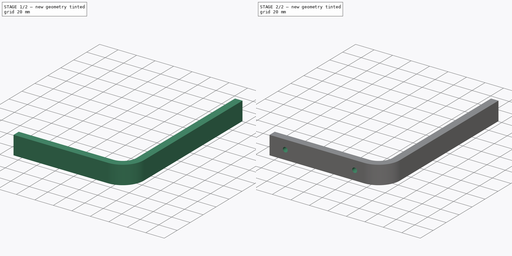
[diagram: build sequence overview — one tinted view per stage of 2, left to right]
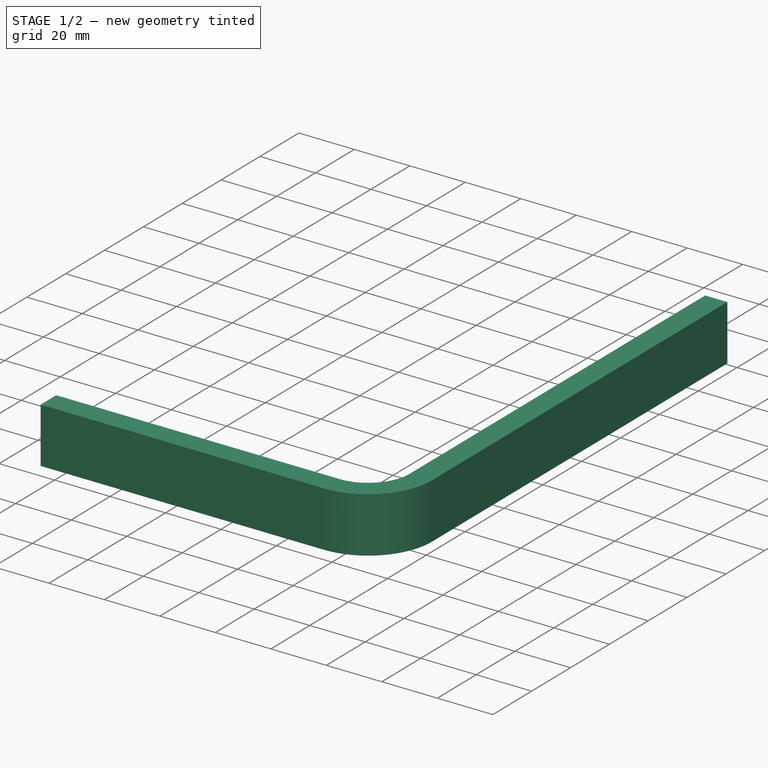
[diagram: stage 1 of 2 — iso view after this stage's code; geometry added in this stage tinted green]
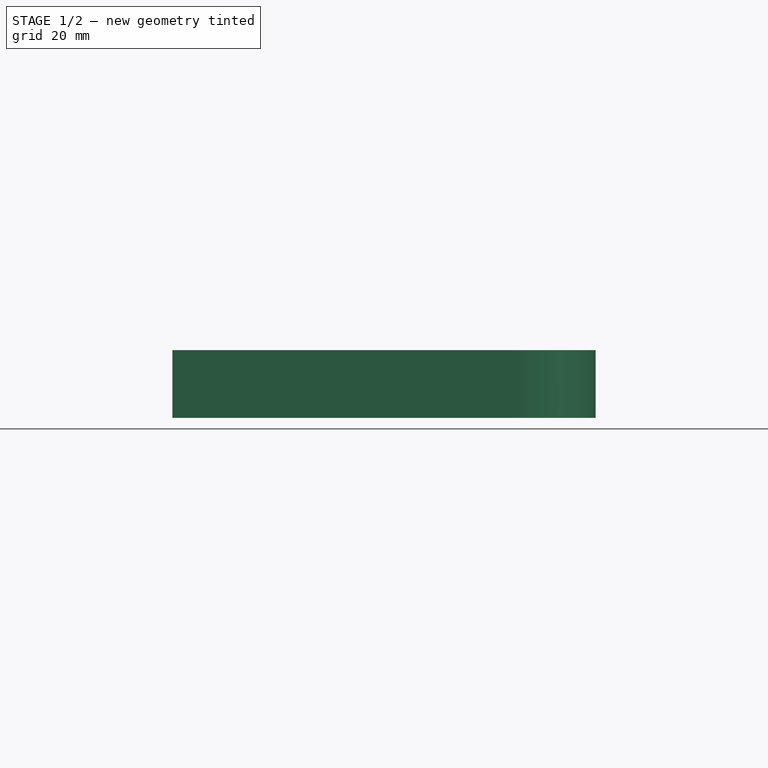
[diagram: stage 1 of 2 — front view after this stage's code; geometry added in this stage tinted green]
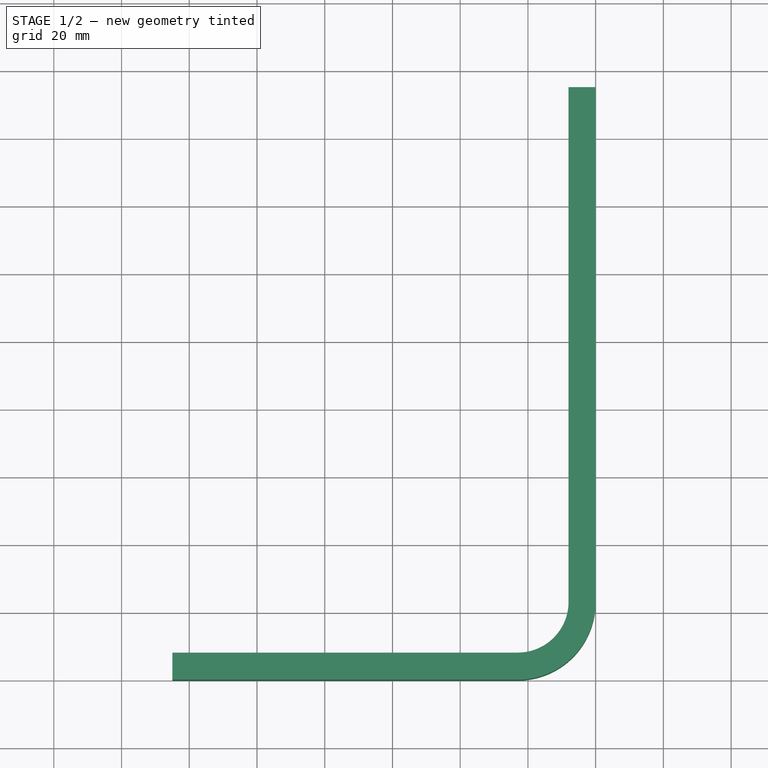
[diagram: stage 1 of 2 — top view after this stage's code; geometry added in this stage tinted green]
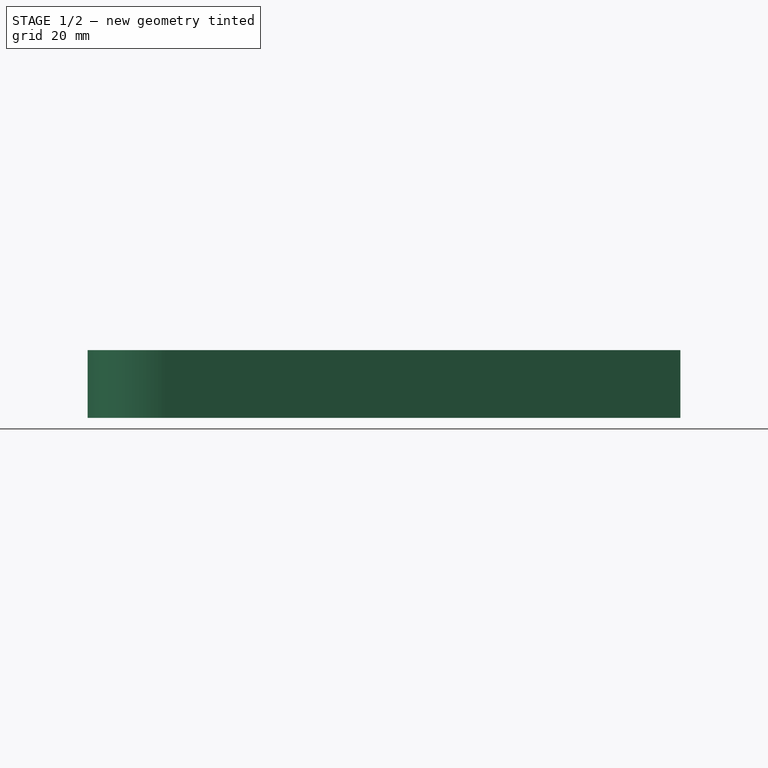
[diagram: stage 1 of 2 — right view after this stage's code; geometry added in this stage tinted green]
FCSTD DOCUMENT  (FreeCAD 0.19R24366 (Git))
Label: AL_BRACKET_A
License: All rights reserved
LicenseURL: http://en.wikipedia.org/wiki/All_rights_reserved
objects: PartDesign::CoordinateSystem×2, Sketcher::SketchObject×2, PartDesign::Pad×1, PartDesign::Pocket×1, PartDesign::Body×1, App::Part×1
note: 9 computed .brp shape members not serialized (recipe doc carries the construction recipe); baked Part::Feature solids carry a one-line shape summary decoded from their .brp

FEATURE [PartDesign::CoordinateSystem] LCS_0
  AttacherType = Attacher::AttachEngine3D
  MapMode = 2
  Support = -> [X_Axis]
FEATURE [PartDesign::CoordinateSystem] LCS_0001
  AttacherType = Attacher::AttachEngine3D
  MapMode = 2
  Support = -> [X_Axis001]
FEATURE [Sketcher::SketchObject] Sketch
  FullyConstrained = true
  MapMode = 5
  Support = -> [XY_Plane001]
  sketch-geometry (8):
    g0: LineSegment StartX=0 StartY=175 StartZ=0 EndX=-8 EndY=175 EndZ=0
    g1: LineSegment StartX=-8 StartY=175 StartZ=0 EndX=-8 EndY=23 EndZ=0
    g2: LineSegment StartX=-23 StartY=8 StartZ=0 EndX=-125 EndY=8 EndZ=0
    g3: LineSegment StartX=-125 StartY=8 StartZ=0 EndX=-125 EndY=0 EndZ=0
    g4: LineSegment StartX=-125 StartY=0 StartZ=0 EndX=-23 EndY=5.222e-13 EndZ=0
    g5: LineSegment StartX=-5.08e-13 StartY=23 StartZ=0 EndX=0 EndY=175 EndZ=0
    g6: ArcOfCircle CenterX=-23 CenterY=23 CenterZ=0 NormalX=0 NormalY=0 NormalZ=1 AngleXU=0 Radius=15 StartAngle=4.71239 EndAngle=6.28319
    g7: ArcOfCircle CenterX=-23 CenterY=23 CenterZ=0 NormalX=0 NormalY=0 NormalZ=1 AngleXU=0 Radius=23 StartAngle=4.71239 EndAngle=6.28319
  constraints (25):
    c: PointOnObject(g0,g-2)
    c: Horizontal(g0)
    c: Coincident(g0,g1)
    c: Vertical(g1)
    c: Horizontal(g2)
    c: Coincident(g2,g3)
    c: PointOnObject(g3,g-1)
    c: Coincident(g3,g4)
    c: PointOnObject(g4,g-1)
    c: PointOnObject(g5,g-2)
    c: Coincident(g5,g0)
    c: Coincident(g6,g1)
    c: Coincident(g6,g2)
    c: Coincident(g7,g6)
    c: Coincident(g7,g5)
    c: Coincident(g7,g4)
    c: DistanceX(g0,g0) = 8
    c: Vertical(g3)
    c: DistanceX(g3,g-1) = 125
    c: DistanceY(g-1,g0) = 175
    c: Diameter(g6) = 30
    c: Horizontal(g6,g1)
    c: Horizontal(g1,g5)
    c: Vertical(g6,g2)
    c: Vertical(g2,g4)
FEATURE [PartDesign::Pad] Pad
  Direction = (1,1,1)
  Length = 20
  Length2 = 100
  Midplane = true
  Profile = -> Sketch
  Refine = true
  Type = 0
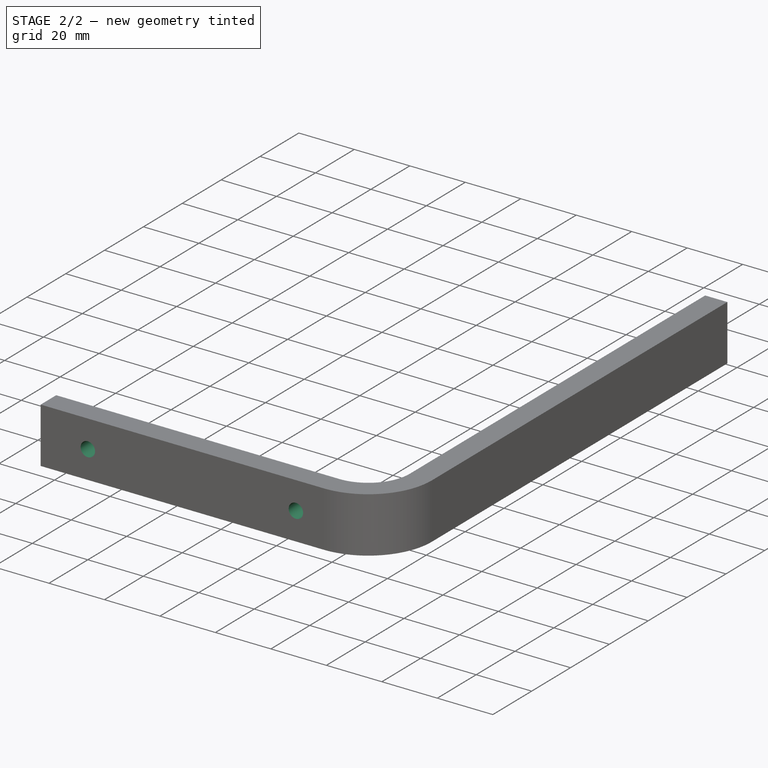
[diagram: stage 2 of 2 — iso view after this stage's code; geometry added in this stage tinted green]
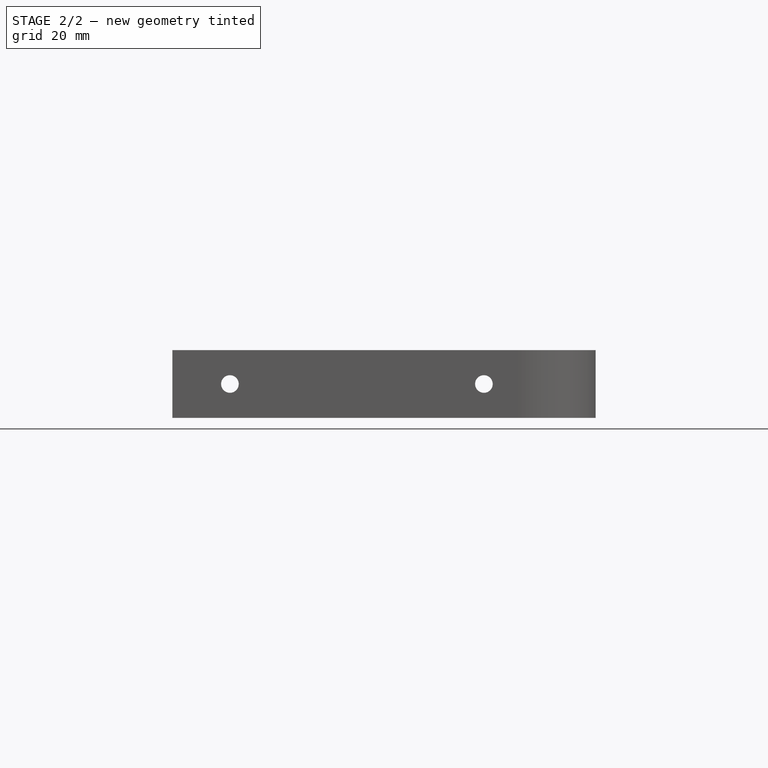
[diagram: stage 2 of 2 — front view after this stage's code; geometry added in this stage tinted green]
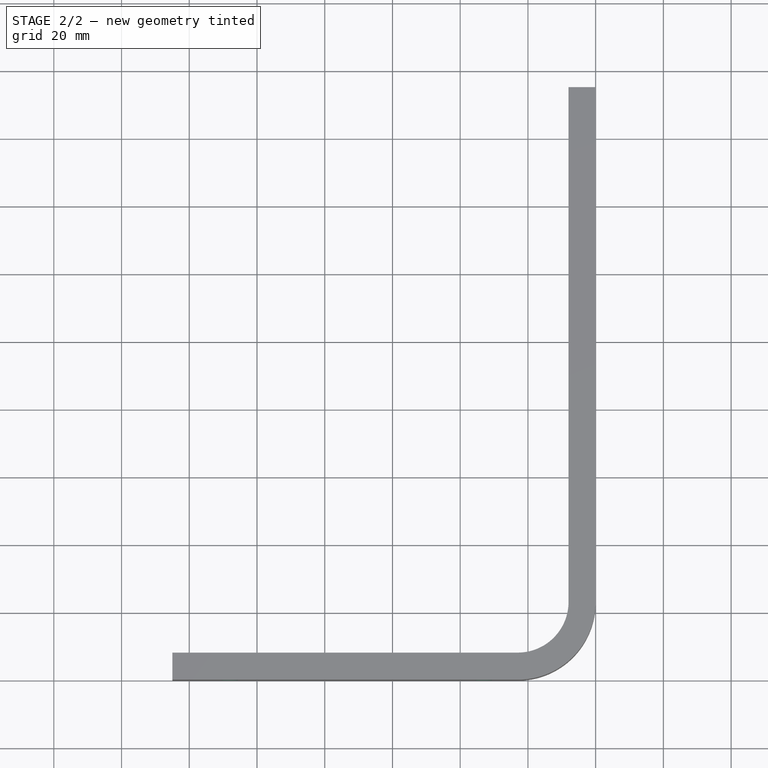
[diagram: stage 2 of 2 — top view after this stage's code; geometry added in this stage tinted green]
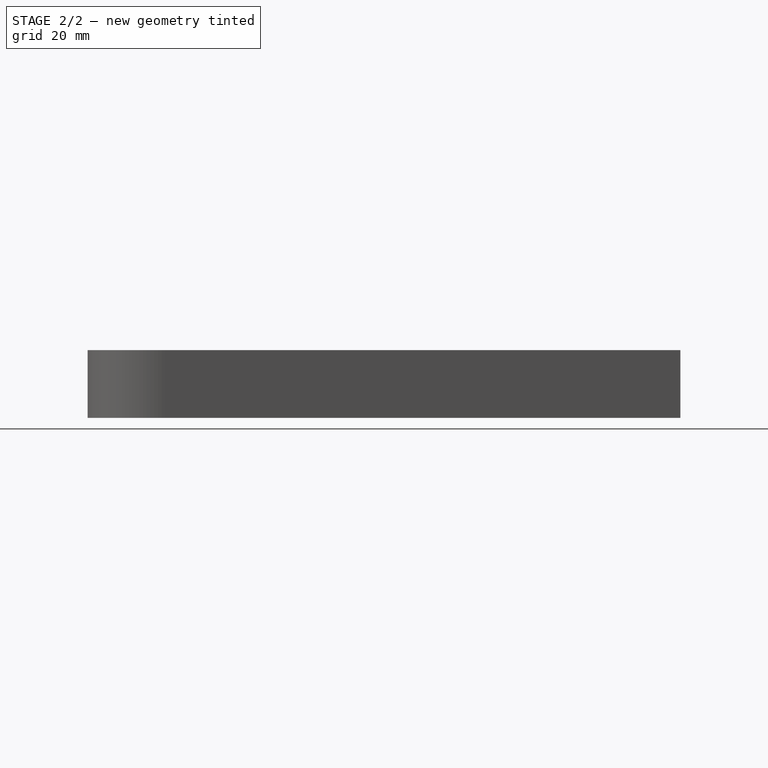
[diagram: stage 2 of 2 — right view after this stage's code; geometry added in this stage tinted green]
FEATURE [Sketcher::SketchObject] Sketch001
  FullyConstrained = true
  MapMode = 5
  Placement = pos=(0,0,0) rot=(1,0,0;1.5708rad)
  Support = -> [XZ_Plane001]
  sketch-geometry (2):
    g0: Circle CenterX=-108 CenterY=0 CenterZ=0 NormalX=0 NormalY=0 NormalZ=1 AngleXU=0 Radius=2.6
    g1: Circle CenterX=-33 CenterY=0 CenterZ=0 NormalX=0 NormalY=0 NormalZ=1 AngleXU=0 Radius=2.6
  constraints (6):
    c: PointOnObject(g0,g-1)
    c: PointOnObject(g1,g-1)
    c: DistanceX(g0,g1) = 75
    c: DistanceX(g0,g-1) = 108
    c: Diameter(g1) = 5.2
    c: Equal(g1,g0)
FEATURE [PartDesign::Pocket] Pocket
  BaseFeature = -> Pad
  Length = 5
  Length2 = 100
  Profile = -> Sketch001
  Refine = true
  Type = 1
FEATURE [PartDesign::Body] Body
  Group = -> [LCS_0001,Sketch,Pad,Sketch001,Pocket]
  Origin = -> Origin001
  Tip = -> Pocket
FEATURE [App::Part] Part
  Group = -> [LCS_0,Body]
  Origin = -> Origin
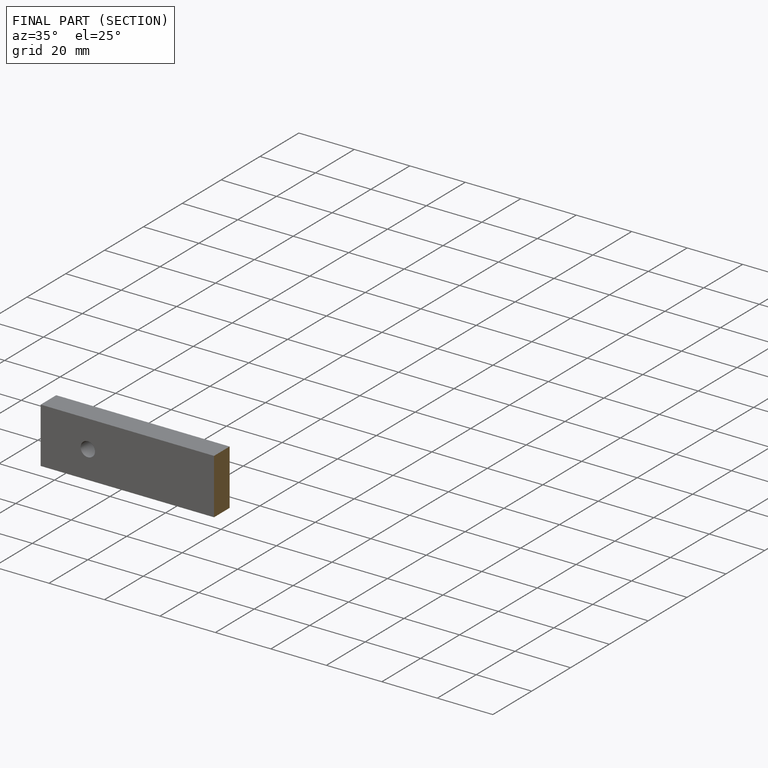
[diagram: finished part — half-section view (interior)]
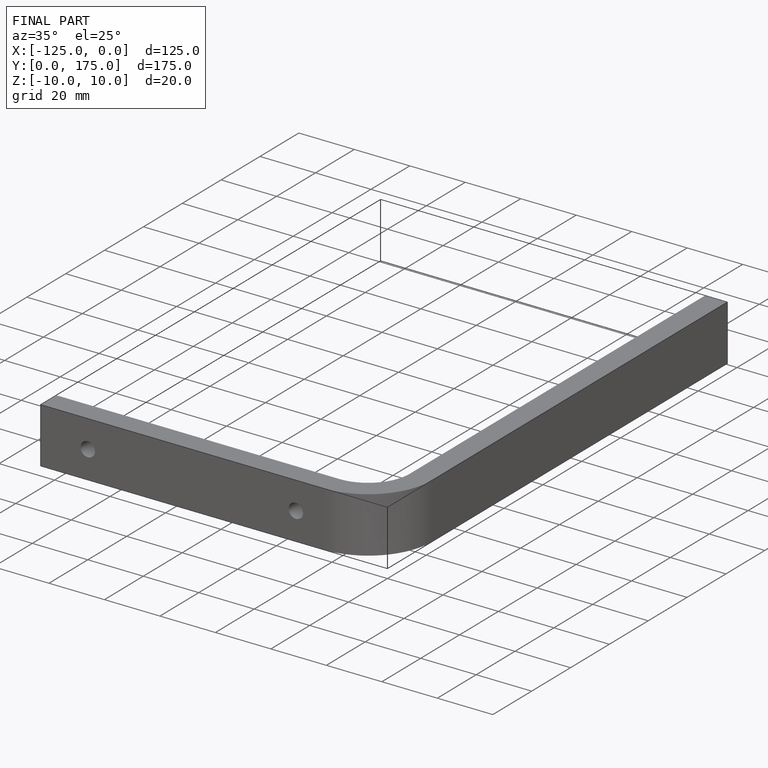
[diagram: finished part — iso view with bounding-box wireframe]
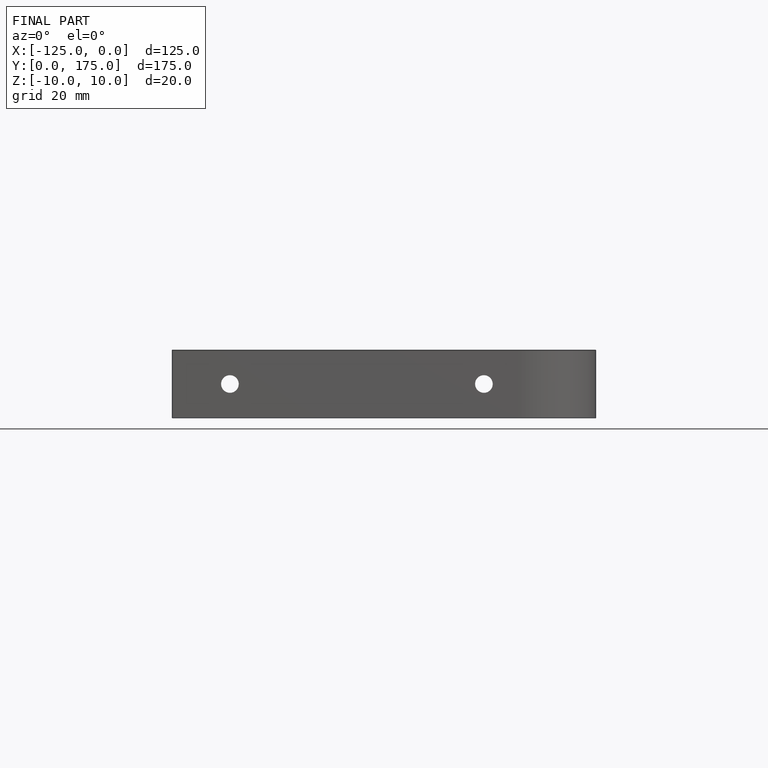
[diagram: finished part — front view with bounding-box wireframe]
